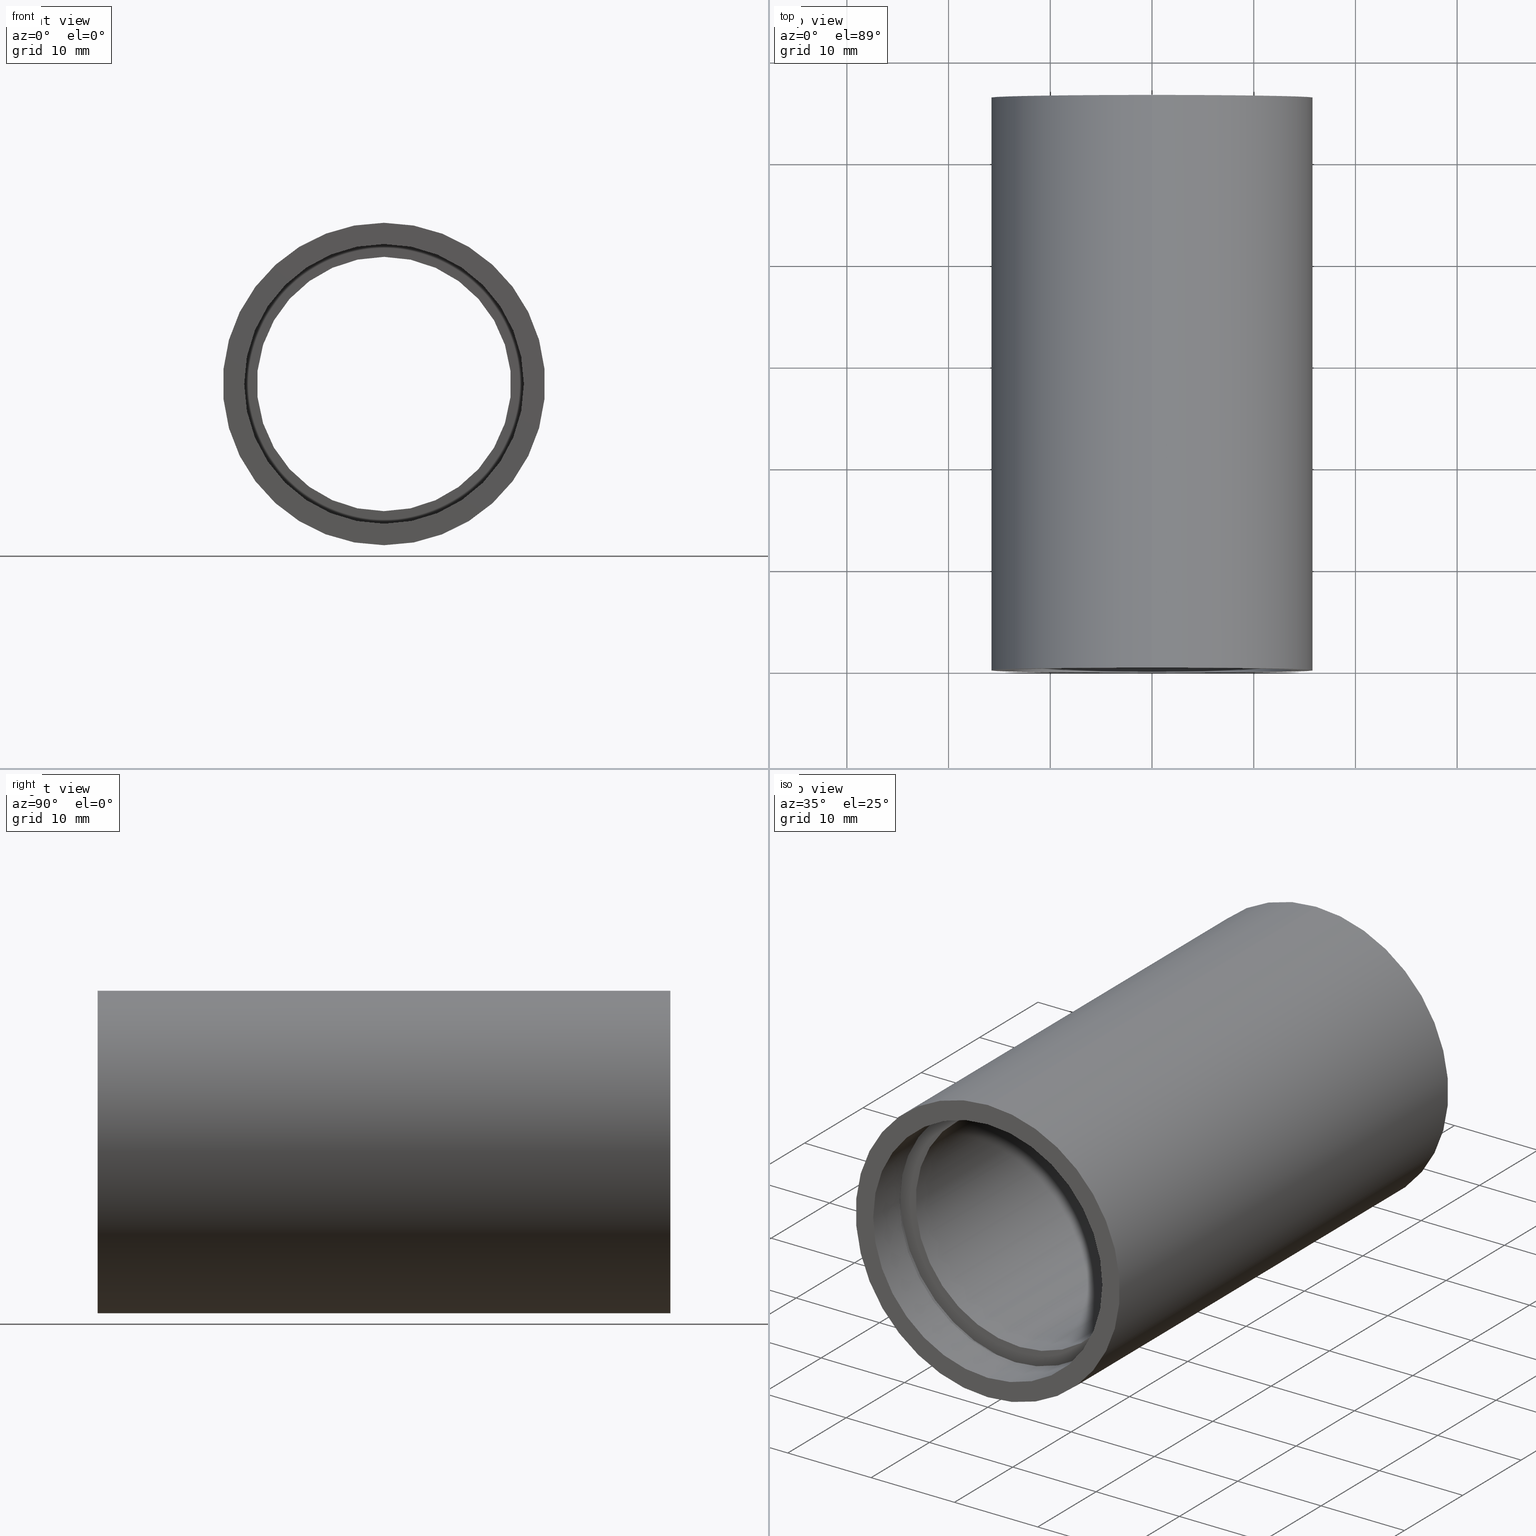
[diagram: canonical four-view strip — front | top / right | iso, engineering-drawing reading convention]
A machine part, canonical four-view strip (front | top / right | iso — engineering-drawing reading convention). The complete STEP part file that produces these views, byte-faithful:
ISO-10303-21;
HEADER;
FILE_DESCRIPTION (( 'STEP AP214' ),
    '1' );
FILE_NAME ('503051.STEP',
    '2019-09-06T07:25:42',
    ( '' ),
    ( '' ),
    'SwSTEP 2.0',
    'SolidWorks 2016',
    '' );
FILE_SCHEMA (( 'AUTOMOTIVE_DESIGN' ));
ENDSEC;

DATA;
#1 = AXIS2_PLACEMENT_3D ( 'NONE', #528, #328, #228 ) ;
#2 = ORIENTED_EDGE ( 'NONE', *, *, #159, .T. ) ;
#3 = CARTESIAN_POINT ( 'NONE',  ( 1.683889348827613200E-015, 161.3761669434274500, -13.75000000000002100 ) ) ;
#4 = ORIENTED_EDGE ( 'NONE', *, *, #222, .T. ) ;
#5 = DIRECTION ( 'NONE',  ( -0.0000000000000000000, 1.000000000000000000, -0.0000000000000000000 ) ) ;
#6 = PRESENTATION_STYLE_ASSIGNMENT (( #253 ) ) ;
#7 = LINE ( 'NONE', #386, #153 ) ;
#8 = DIRECTION ( 'NONE',  ( 0.0000000000000000000, 0.0000000000000000000, 1.000000000000000000 ) ) ;
#9 = COLOUR_RGB ( '',1.000000000000000000, 1.000000000000000000, 1.000000000000000000 ) ;
#10 = EDGE_LOOP ( 'NONE', ( #39, #550, #354, #324 ) ) ;
#11 = CARTESIAN_POINT ( 'NONE',  ( 1.941065176648557100E-015, 56.29999999999999000, -15.85000000000002100 ) ) ;
#12 = AXIS2_PLACEMENT_3D ( 'NONE', #34, #385, #185 ) ;
#13 = CARTESIAN_POINT ( 'NONE',  ( 0.0000000000000000000, 51.79999999999996900, 0.0000000000000000000 ) ) ;
#14 = LINE ( 'NONE', #229, #372 ) ;
#15 = CARTESIAN_POINT ( 'NONE',  ( 0.0000000000000000000, 161.3761669434274500, 0.0000000000000000000 ) ) ;
#16 = VERTEX_POINT ( 'NONE', #107 ) ;
#17 = ORIENTED_EDGE ( 'NONE', *, *, #572, .T. ) ;
#18 = CARTESIAN_POINT ( 'NONE',  ( 1.757368156776453600E-015, 51.79999999999996900, -14.35000000000001200 ) ) ;
#19 = DIRECTION ( 'NONE',  ( -0.0000000000000000000, 1.000000000000000000, -0.0000000000000000000 ) ) ;
#20 = VECTOR ( 'NONE', #22, 1000.000000000000000 ) ;
#21 = AXIS2_PLACEMENT_3D ( 'NONE', #15, #414, #105 ) ;
#22 = DIRECTION ( 'NONE',  ( -0.0000000000000000000, 1.000000000000000000, -0.0000000000000000000 ) ) ;
#23 = CARTESIAN_POINT ( 'NONE',  ( 0.0000000000000000000, 4.499999999999976000, 0.0000000000000000000 ) ) ;
#24 = LINE ( 'NONE', #140, #240 ) ;
#25 = AXIS2_PLACEMENT_3D ( 'NONE', #412, #256, #596 ) ;
#26 = CYLINDRICAL_SURFACE ( 'NONE', #429, 13.75000000000002100 ) ;
#27 = VERTEX_POINT ( 'NONE', #18 ) ;
#28 = FILL_AREA_STYLE ('',( #318 ) ) ;
#29 = FACE_OUTER_BOUND ( 'NONE', #569, .T. ) ;
#30 = EDGE_CURVE ( 'NONE', #266, #410, #416, .T. ) ;
#31 = DIRECTION ( 'NONE',  ( -0.0000000000000000000, 1.000000000000000000, -0.0000000000000000000 ) ) ;
#32 = AXIS2_PLACEMENT_3D ( 'NONE', #233, #290, #387 ) ;
#33 = ORIENTED_EDGE ( 'NONE', *, *, #345, .T. ) ;
#34 = CARTESIAN_POINT ( 'NONE',  ( 0.0000000000000000000, -2.775557561562891400E-014, 0.0000000000000000000 ) ) ;
#35 = FILL_AREA_STYLE_COLOUR ( '', #119 ) ;
#36 = CIRCLE ( 'NONE', #56, 14.35000000000001200 ) ;
#37 = DIRECTION ( 'NONE',  ( 0.0000000000000000000, 0.0000000000000000000, 1.000000000000000000 ) ) ;
#38 = DIRECTION ( 'NONE',  ( -0.0000000000000000000, 1.000000000000000000, -0.0000000000000000000 ) ) ;
#39 = ORIENTED_EDGE ( 'NONE', *, *, #512, .F. ) ;
#40 = UNCERTAINTY_MEASURE_WITH_UNIT (LENGTH_MEASURE( 1.000000000000000100E-005 ), #134, 'distance_accuracy_value', 'NONE');
#41 = DIRECTION ( 'NONE',  ( -0.0000000000000000000, 1.000000000000000000, -0.0000000000000000000 ) ) ;
#42 = SHAPE_DEFINITION_REPRESENTATION ( #363, #82 ) ;
#43 = CIRCLE ( 'NONE', #75, 15.85000000000002100 ) ;
#44 = AXIS2_PLACEMENT_3D ( 'NONE', #85, #41, #144 ) ;
#45 = PLANE ( 'NONE',  #398 ) ;
#46 = EDGE_LOOP ( 'NONE', ( #259, #425 ) ) ;
#47 = EDGE_LOOP ( 'NONE', ( #353, #607, #221, #186 ) ) ;
#48 = SURFACE_SIDE_STYLE ('',( #53 ) ) ;
#49 = ORIENTED_EDGE ( 'NONE', *, *, #106, .T. ) ;
#50 = VERTEX_POINT ( 'NONE', #514 ) ;
#51 =( GEOMETRIC_REPRESENTATION_CONTEXT ( 3 ) GLOBAL_UNCERTAINTY_ASSIGNED_CONTEXT ( ( #317 ) ) GLOBAL_UNIT_ASSIGNED_CONTEXT ( ( #560, #515, #517 ) ) REPRESENTATION_CONTEXT ( 'NONE', 'WORKASPACE' ) );
#52 = FILL_AREA_STYLE ('',( #587 ) ) ;
#53 = SURFACE_STYLE_FILL_AREA ( #52 ) ;
#54 = CARTESIAN_POINT ( 'NONE',  ( 0.0000000000000000000, 161.3761669434274500, 0.0000000000000000000 ) ) ;
#55 = AXIS2_PLACEMENT_3D ( 'NONE', #122, #118, #558 ) ;
#56 = AXIS2_PLACEMENT_3D ( 'NONE', #63, #408, #314 ) ;
#57 = LINE ( 'NONE', #3, #319 ) ;
#58 =( NAMED_UNIT ( * ) SI_UNIT ( $, .STERADIAN. ) SOLID_ANGLE_UNIT ( ) );
#59 = CIRCLE ( 'NONE', #389, 13.75000000000002100 ) ;
#60 = EDGE_LOOP ( 'NONE', ( #260, #436, #326, #68 ) ) ;
#61 = MECHANICAL_DESIGN_GEOMETRIC_PRESENTATION_REPRESENTATION (  '', ( #595 ), #83 ) ;
#62 = CYLINDRICAL_SURFACE ( 'NONE', #268, 14.35000000000001900 ) ;
#63 = CARTESIAN_POINT ( 'NONE',  ( 0.0000000000000000000, 50.79999999999996900, 0.0000000000000000000 ) ) ;
#64 = UNCERTAINTY_MEASURE_WITH_UNIT (LENGTH_MEASURE( 1.000000000000000100E-005 ), #503, 'distance_accuracy_value', 'NONE');
#65 = EDGE_CURVE ( 'NONE', #404, #476, #215, .T. ) ;
#66 = CARTESIAN_POINT ( 'NONE',  ( 0.0000000000000000000, -2.775557561562891400E-014, 0.0000000000000000000 ) ) ;
#67 = SURFACE_SIDE_STYLE ('',( #561 ) ) ;
#68 = ORIENTED_EDGE ( 'NONE', *, *, #405, .F. ) ;
#69 =( LENGTH_UNIT ( ) NAMED_UNIT ( * ) SI_UNIT ( .MILLI., .METRE. ) );
#70 = EDGE_CURVE ( 'NONE', #252, #397, #139, .T. ) ;
#71 = APPLICATION_CONTEXT ( 'automotive_design' ) ;
#72 = DIRECTION ( 'NONE',  ( 0.0000000000000000000, 0.0000000000000000000, 1.000000000000000000 ) ) ;
#73 = PRODUCT_CONTEXT ( 'NONE', #71, 'mechanical' ) ;
#74 = CYLINDRICAL_SURFACE ( 'NONE', #250, 14.25000000000001400 ) ;
#75 = AXIS2_PLACEMENT_3D ( 'NONE', #446, #244, #455 ) ;
#76 = ORIENTED_EDGE ( 'NONE', *, *, #137, .F. ) ;
#77 = VERTEX_POINT ( 'NONE', #110 ) ;
#78 = CARTESIAN_POINT ( 'NONE',  ( 0.0000000000000000000, 161.3761669434274500, 0.0000000000000000000 ) ) ;
#79 =( NAMED_UNIT ( * ) PLANE_ANGLE_UNIT ( ) SI_UNIT ( $, .RADIAN. ) );
#80 = AXIS2_PLACEMENT_3D ( 'NONE', #323, #320, #178 ) ;
#81 = ORIENTED_EDGE ( 'NONE', *, *, #325, .T. ) ;
#82 = ADVANCED_BREP_SHAPE_REPRESENTATION ( '503051', ( #500, #191 ), #254 ) ;
#83 =( GEOMETRIC_REPRESENTATION_CONTEXT ( 3 ) GLOBAL_UNCERTAINTY_ASSIGNED_CONTEXT ( ( #40 ) ) GLOBAL_UNIT_ASSIGNED_CONTEXT ( ( #134, #79, #427 ) ) REPRESENTATION_CONTEXT ( 'NONE', 'WORKASPACE' ) );
#84 = ADVANCED_FACE ( 'NONE', ( #309 ), #26, .F. ) ;
#85 = CARTESIAN_POINT ( 'NONE',  ( 0.0000000000000000000, 50.79999999999996900, 0.0000000000000000000 ) ) ;
#86 = DIRECTION ( 'NONE',  ( 0.0000000000000000000, 0.0000000000000000000, 1.000000000000000000 ) ) ;
#87 = LINE ( 'NONE', #623, #592 ) ;
#88 = EDGE_CURVE ( 'NONE', #120, #388, #59, .T. ) ;
#89 = EDGE_LOOP ( 'NONE', ( #434, #538 ) ) ;
#90 = ORIENTED_EDGE ( 'NONE', *, *, #381, .T. ) ;
#91 = CARTESIAN_POINT ( 'NONE',  ( 1.530808498934193900E-015, 50.79999999999996900, -12.50000000000002000 ) ) ;
#92 =( GEOMETRIC_REPRESENTATION_CONTEXT ( 3 ) GLOBAL_UNCERTAINTY_ASSIGNED_CONTEXT ( ( #364 ) ) GLOBAL_UNIT_ASSIGNED_CONTEXT ( ( #114, #369, #463 ) ) REPRESENTATION_CONTEXT ( 'NONE', 'WORKASPACE' ) );
#93 = DIRECTION ( 'NONE',  ( 0.0000000000000000000, 0.0000000000000000000, 1.000000000000000000 ) ) ;
#94 = CIRCLE ( 'NONE', #499, 12.50000000000002000 ) ;
#95 = EDGE_LOOP ( 'NONE', ( #390, #149, #112, #227 ) ) ;
#96 = EDGE_CURVE ( 'NONE', #375, #77, #620, .T. ) ;
#97 = ADVANCED_FACE ( 'NONE', ( #566 ), #403, .F. ) ;
#98 = DIRECTION ( 'NONE',  ( 0.0000000000000000000, 0.0000000000000000000, 1.000000000000000000 ) ) ;
#99 = FACE_BOUND ( 'NONE', #483, .T. ) ;
#100 = SURFACE_STYLE_FILL_AREA ( #378 ) ;
#101 = FACE_OUTER_BOUND ( 'NONE', #47, .T. ) ;
#102 = CARTESIAN_POINT ( 'NONE',  ( 0.0000000000000000000, 4.499999999999976000, 14.35000000000001900 ) ) ;
#103 = ORIENTED_EDGE ( 'NONE', *, *, #622, .T. ) ;
#104 = DIRECTION ( 'NONE',  ( -0.0000000000000000000, 1.000000000000000000, -0.0000000000000000000 ) ) ;
#105 = DIRECTION ( 'NONE',  ( 0.0000000000000000000, 0.0000000000000000000, 1.000000000000000000 ) ) ;
#106 = EDGE_CURVE ( 'NONE', #529, #16, #474, .T. ) ;
#107 = CARTESIAN_POINT ( 'NONE',  ( 1.757368156776453600E-015, 50.79999999999996900, -14.35000000000001200 ) ) ;
#108 = PLANE ( 'NONE',  #349 ) ;
#109 = LINE ( 'NONE', #574, #473 ) ;
#110 = CARTESIAN_POINT ( 'NONE',  ( 0.0000000000000000000, 56.29999999999999000, 15.85000000000002100 ) ) ;
#111 = VERTEX_POINT ( 'NONE', #413 ) ;
#112 = ORIENTED_EDGE ( 'NONE', *, *, #472, .T. ) ;
#113 = DIRECTION ( 'NONE',  ( -0.0000000000000000000, 1.000000000000000000, -0.0000000000000000000 ) ) ;
#114 =( LENGTH_UNIT ( ) NAMED_UNIT ( * ) SI_UNIT ( .MILLI., .METRE. ) );
#115 = CARTESIAN_POINT ( 'NONE',  ( 1.745121688784980200E-015, 56.29999999999997600, -14.25000000000001400 ) ) ;
#116 = FILL_AREA_STYLE_COLOUR ( '', #9 ) ;
#117 = PRESENTATION_LAYER_ASSIGNMENT (  '', '', ( #400 ) ) ;
#118 = DIRECTION ( 'NONE',  ( -0.0000000000000000000, 1.000000000000000000, -0.0000000000000000000 ) ) ;
#119 = COLOUR_RGB ( '',1.000000000000000000, 1.000000000000000000, 1.000000000000000000 ) ;
#120 = VERTEX_POINT ( 'NONE', #421 ) ;
#121 = DIRECTION ( 'NONE',  ( 1.000000000000000000, 0.0000000000000000000, 0.0000000000000000000 ) ) ;
#122 = CARTESIAN_POINT ( 'NONE',  ( 0.0000000000000000000, 56.29999999999997600, 0.0000000000000000000 ) ) ;
#123 = AXIS2_PLACEMENT_3D ( 'NONE', #376, #127, #477 ) ;
#124 = PRODUCT ( '503051', '503051', '', ( #73 ) ) ;
#125 = APPLICATION_PROTOCOL_DEFINITION ( 'draft international standard', 'automotive_design', 1998, #71 ) ;
#126 = DIRECTION ( 'NONE',  ( -0.0000000000000000000, 1.000000000000000000, -0.0000000000000000000 ) ) ;
#127 = DIRECTION ( 'NONE',  ( -0.0000000000000000000, 1.000000000000000000, -0.0000000000000000000 ) ) ;
#128 = PRESENTATION_LAYER_ASSIGNMENT (  '', '', ( #155 ) ) ;
#129 =( NAMED_UNIT ( * ) SI_UNIT ( $, .STERADIAN. ) SOLID_ANGLE_UNIT ( ) );
#130 = SURFACE_STYLE_FILL_AREA ( #617 ) ;
#131 = VERTEX_POINT ( 'NONE', #523 ) ;
#132 = EDGE_LOOP ( 'NONE', ( #568, #76 ) ) ;
#133 = LINE ( 'NONE', #208, #577 ) ;
#134 =( LENGTH_UNIT ( ) NAMED_UNIT ( * ) SI_UNIT ( .MILLI., .METRE. ) );
#135 = SURFACE_STYLE_USAGE ( .BOTH. , #383 ) ;
#136 = ADVANCED_FACE ( 'NONE', ( #101 ), #138, .F. ) ;
#137 = EDGE_CURVE ( 'NONE', #210, #111, #464, .T. ) ;
#138 = CYLINDRICAL_SURFACE ( 'NONE', #570, 12.50000000000002000 ) ;
#139 = CIRCLE ( 'NONE', #423, 14.35000000000001900 ) ;
#140 = CARTESIAN_POINT ( 'NONE',  ( 0.0000000000000000000, 161.3761669434274500, 14.25000000000001400 ) ) ;
#141 = ORIENTED_EDGE ( 'NONE', *, *, #205, .T. ) ;
#142 = PLANE ( 'NONE',  #176 ) ;
#143 = CYLINDRICAL_SURFACE ( 'NONE', #21, 14.35000000000001200 ) ;
#144 = DIRECTION ( 'NONE',  ( 0.0000000000000000000, 0.0000000000000000000, 1.000000000000000000 ) ) ;
#145 = FACE_OUTER_BOUND ( 'NONE', #60, .T. ) ;
#146 = EDGE_CURVE ( 'NONE', #397, #252, #316, .T. ) ;
#147 = ORIENTED_EDGE ( 'NONE', *, *, #168, .T. ) ;
#148 = ADVANCED_FACE ( 'NONE', ( #488 ), #495, .F. ) ;
#149 = ORIENTED_EDGE ( 'NONE', *, *, #512, .T. ) ;
#150 = COLOUR_RGB ( '',1.000000000000000000, 1.000000000000000000, 1.000000000000000000 ) ;
#151 = DIRECTION ( 'NONE',  ( -0.0000000000000000000, 1.000000000000000000, -0.0000000000000000000 ) ) ;
#152 = CIRCLE ( 'NONE', #209, 14.35000000000001200 ) ;
#153 = VECTOR ( 'NONE', #435, 1000.000000000000000 ) ;
#154 = DIRECTION ( 'NONE',  ( -0.0000000000000000000, 1.000000000000000000, -0.0000000000000000000 ) ) ;
#155 = STYLED_ITEM ( 'NONE', ( #504 ), #97 ) ;
#156 = EDGE_LOOP ( 'NONE', ( #417, #90, #341, #489 ) ) ;
#157 = SURFACE_SIDE_STYLE ('',( #130 ) ) ;
#158 = DIRECTION ( 'NONE',  ( -0.0000000000000000000, 1.000000000000000000, 0.0000000000000000000 ) ) ;
#159 = EDGE_CURVE ( 'NONE', #361, #340, #518, .T. ) ;
#160 = MECHANICAL_DESIGN_GEOMETRIC_PRESENTATION_REPRESENTATION (  '', ( #496 ), #216 ) ;
#161 = DIRECTION ( 'NONE',  ( 0.0000000000000000000, 0.0000000000000000000, 1.000000000000000000 ) ) ;
#162 = ORIENTED_EDGE ( 'NONE', *, *, #381, .F. ) ;
#163 = ORIENTED_EDGE ( 'NONE', *, *, #303, .F. ) ;
#164 = AXIS2_PLACEMENT_3D ( 'NONE', #602, #322, #72 ) ;
#165 = CARTESIAN_POINT ( 'NONE',  ( 13.75000000000002100, 4.499999999999984000, 0.0000000000000000000 ) ) ;
#166 = CIRCLE ( 'NONE', #237, 14.35000000000001200 ) ;
#167 = DIRECTION ( 'NONE',  ( 0.0000000000000000000, -1.000000000000000000, 0.0000000000000000000 ) ) ;
#168 = EDGE_CURVE ( 'NONE', #410, #397, #14, .T. ) ;
#169 = FILL_AREA_STYLE ('',( #269 ) ) ;
#170 = DIRECTION ( 'NONE',  ( 0.0000000000000000000, -0.0000000000000000000, -1.000000000000000000 ) ) ;
#171 = DIRECTION ( 'NONE',  ( -0.0000000000000000000, 1.000000000000000000, -0.0000000000000000000 ) ) ;
#172 = ORIENTED_EDGE ( 'NONE', *, *, #222, .F. ) ;
#173 = EDGE_CURVE ( 'NONE', #50, #181, #109, .T. ) ;
#174 = DIRECTION ( 'NONE',  ( 0.0000000000000000000, 0.0000000000000000000, 1.000000000000000000 ) ) ;
#175 = PRODUCT_RELATED_PRODUCT_CATEGORY ( 'part', '', ( #124 ) ) ;
#176 = AXIS2_PLACEMENT_3D ( 'NONE', #192, #395, #93 ) ;
#177 = DIRECTION ( 'NONE',  ( 0.0000000000000000000, 0.0000000000000000000, 1.000000000000000000 ) ) ;
#178 = DIRECTION ( 'NONE',  ( 0.0000000000000000000, 0.0000000000000000000, 1.000000000000000000 ) ) ;
#179 = ORIENTED_EDGE ( 'NONE', *, *, #168, .F. ) ;
#180 = DIRECTION ( 'NONE',  ( 0.0000000000000000000, 0.0000000000000000000, 1.000000000000000000 ) ) ;
#181 = VERTEX_POINT ( 'NONE', #424 ) ;
#182 = EDGE_CURVE ( 'NONE', #361, #77, #7, .T. ) ;
#183 = DIRECTION ( 'NONE',  ( -0.0000000000000000000, 1.000000000000000000, -0.0000000000000000000 ) ) ;
#184 = CARTESIAN_POINT ( 'NONE',  ( 0.0000000000000000000, 5.499999999999976900, 0.0000000000000000000 ) ) ;
#185 = DIRECTION ( 'NONE',  ( 0.0000000000000000000, 0.0000000000000000000, 1.000000000000000000 ) ) ;
#186 = ORIENTED_EDGE ( 'NONE', *, *, #173, .F. ) ;
#187 = FILL_AREA_STYLE_COLOUR ( '', #547 ) ;
#188 = CYLINDRICAL_SURFACE ( 'NONE', #492, 15.85000000000002100 ) ;
#189 = DIRECTION ( 'NONE',  ( -0.0000000000000000000, 1.000000000000000000, -0.0000000000000000000 ) ) ;
#190 = DIRECTION ( 'NONE',  ( 0.0000000000000000000, -1.000000000000000000, 0.0000000000000000000 ) ) ;
#191 = AXIS2_PLACEMENT_3D ( 'NONE', #471, #370, #121 ) ;
#192 = CARTESIAN_POINT ( 'NONE',  ( 14.25000000000001400, 51.79999999999996900, 0.0000000000000000000 ) ) ;
#193 = EDGE_LOOP ( 'NONE', ( #172, #163 ) ) ;
#194 = CARTESIAN_POINT ( 'NONE',  ( 0.0000000000000000000, 51.79999999999996900, 0.0000000000000000000 ) ) ;
#195 = ADVANCED_FACE ( 'NONE', ( #145 ), #358, .F. ) ;
#196 = FACE_OUTER_BOUND ( 'NONE', #327, .T. ) ;
#197 = AXIS2_PLACEMENT_3D ( 'NONE', #78, #281, #611 ) ;
#198 = ADVANCED_FACE ( 'NONE', ( #618 ), #510, .F. ) ;
#199 = CARTESIAN_POINT ( 'NONE',  ( 15.85000000000002100, 56.29999999999997600, 0.0000000000000000000 ) ) ;
#200 = EDGE_CURVE ( 'NONE', #542, #50, #274, .T. ) ;
#201 = DIRECTION ( 'NONE',  ( -0.0000000000000000000, 1.000000000000000000, -0.0000000000000000000 ) ) ;
#202 = EDGE_LOOP ( 'NONE', ( #49, #549 ) ) ;
#203 = UNCERTAINTY_MEASURE_WITH_UNIT (LENGTH_MEASURE( 1.000000000000000100E-005 ), #604, 'distance_accuracy_value', 'NONE');
#204 = CARTESIAN_POINT ( 'NONE',  ( 0.0000000000000000000, 5.499999999999976900, 14.35000000000001900 ) ) ;
#205 = EDGE_CURVE ( 'NONE', #131, #291, #447, .T. ) ;
#206 =( NAMED_UNIT ( * ) PLANE_ANGLE_UNIT ( ) SI_UNIT ( $, .RADIAN. ) );
#207 = LINE ( 'NONE', #351, #456 ) ;
#208 = CARTESIAN_POINT ( 'NONE',  ( 0.0000000000000000000, 161.3761669434274500, 13.75000000000002100 ) ) ;
#209 = AXIS2_PLACEMENT_3D ( 'NONE', #600, #597, #161 ) ;
#210 = VERTEX_POINT ( 'NONE', #578 ) ;
#211 = ORIENTED_EDGE ( 'NONE', *, *, #289, .T. ) ;
#212 =( LENGTH_UNIT ( ) NAMED_UNIT ( * ) SI_UNIT ( .MILLI., .METRE. ) );
#213 = DIRECTION ( 'NONE',  ( -0.0000000000000000000, 1.000000000000000000, -0.0000000000000000000 ) ) ;
#214 = DIRECTION ( 'NONE',  ( 0.0000000000000000000, -1.000000000000000000, 0.0000000000000000000 ) ) ;
#215 = CIRCLE ( 'NONE', #55, 14.25000000000001400 ) ;
#216 =( GEOMETRIC_REPRESENTATION_CONTEXT ( 3 ) GLOBAL_UNCERTAINTY_ASSIGNED_CONTEXT ( ( #203 ) ) GLOBAL_UNIT_ASSIGNED_CONTEXT ( ( #604, #564, #469 ) ) REPRESENTATION_CONTEXT ( 'NONE', 'WORKASPACE' ) );
#217 = COLOUR_RGB ( '',1.000000000000000000, 1.000000000000000000, 1.000000000000000000 ) ;
#218 = SURFACE_SIDE_STYLE ('',( #531 ) ) ;
#219 = PRESENTATION_LAYER_ASSIGNMENT (  '', '', ( #225 ) ) ;
#220 = CARTESIAN_POINT ( 'NONE',  ( 0.0000000000000000000, 161.3761669434274500, 0.0000000000000000000 ) ) ;
#221 = ORIENTED_EDGE ( 'NONE', *, *, #303, .T. ) ;
#222 = EDGE_CURVE ( 'NONE', #181, #333, #249, .T. ) ;
#223 = ORIENTED_EDGE ( 'NONE', *, *, #159, .F. ) ;
#224 = APPLICATION_PROTOCOL_DEFINITION ( 'draft international standard', 'automotive_design', 1998, #524 ) ;
#225 = STYLED_ITEM ( 'NONE', ( #226 ), #335 ) ;
#226 = PRESENTATION_STYLE_ASSIGNMENT (( #297 ) ) ;
#227 = ORIENTED_EDGE ( 'NONE', *, *, #562, .F. ) ;
#228 = DIRECTION ( 'NONE',  ( 0.0000000000000000000, 0.0000000000000000000, 1.000000000000000000 ) ) ;
#229 = CARTESIAN_POINT ( 'NONE',  ( 0.0000000000000000000, 161.3761669434274500, 14.35000000000001900 ) ) ;
#230 = VECTOR ( 'NONE', #104, 1000.000000000000000 ) ;
#231 = EDGE_CURVE ( 'NONE', #77, #375, #612, .T. ) ;
#232 = ADVANCED_FACE ( 'NONE', ( #352, #502 ), #45, .F. ) ;
#233 = CARTESIAN_POINT ( 'NONE',  ( 0.0000000000000000000, 5.499999999999976900, 0.0000000000000000000 ) ) ;
#234 = FACE_OUTER_BOUND ( 'NONE', #277, .T. ) ;
#235 = EDGE_LOOP ( 'NONE', ( #223, #162 ) ) ;
#236 = CARTESIAN_POINT ( 'NONE',  ( 0.0000000000000000000, 4.499999999999976000, 0.0000000000000000000 ) ) ;
#237 = AXIS2_PLACEMENT_3D ( 'NONE', #13, #113, #465 ) ;
#238 = ADVANCED_FACE ( 'NONE', ( #486, #402 ), #624, .F. ) ;
#239 = DIRECTION ( 'NONE',  ( -0.0000000000000000000, 1.000000000000000000, -0.0000000000000000000 ) ) ;
#240 = VECTOR ( 'NONE', #494, 1000.000000000000000 ) ;
#241 = CARTESIAN_POINT ( 'NONE',  ( 0.0000000000000000000, 56.29999999999997600, 14.25000000000001400 ) ) ;
#242 = EDGE_LOOP ( 'NONE', ( #33, #557 ) ) ;
#243 = ORIENTED_EDGE ( 'NONE', *, *, #472, .F. ) ;
#244 = DIRECTION ( 'NONE',  ( -0.0000000000000000000, 1.000000000000000000, -0.0000000000000000000 ) ) ;
#245 = UNCERTAINTY_MEASURE_WITH_UNIT (LENGTH_MEASURE( 1.000000000000000100E-005 ), #485, 'distance_accuracy_value', 'NONE');
#246 = MECHANICAL_DESIGN_GEOMETRIC_PRESENTATION_REPRESENTATION (  '', ( #441 ), #315 ) ;
#247 =( NAMED_UNIT ( * ) PLANE_ANGLE_UNIT ( ) SI_UNIT ( $, .RADIAN. ) );
#248 = DIRECTION ( 'NONE',  ( -0.0000000000000000000, 1.000000000000000000, -0.0000000000000000000 ) ) ;
#249 = CIRCLE ( 'NONE', #44, 12.50000000000002000 ) ;
#250 = AXIS2_PLACEMENT_3D ( 'NONE', #591, #201, #541 ) ;
#251 = COLOUR_RGB ( '',1.000000000000000000, 1.000000000000000000, 1.000000000000000000 ) ;
#252 = VERTEX_POINT ( 'NONE', #540 ) ;
#253 = SURFACE_STYLE_USAGE ( .BOTH. , #67 ) ;
#254 =( GEOMETRIC_REPRESENTATION_CONTEXT ( 3 ) GLOBAL_UNCERTAINTY_ASSIGNED_CONTEXT ( ( #431 ) ) GLOBAL_UNIT_ASSIGNED_CONTEXT ( ( #69, #273, #422 ) ) REPRESENTATION_CONTEXT ( 'NONE', 'WORKASPACE' ) );
#255 =( NAMED_UNIT ( * ) PLANE_ANGLE_UNIT ( ) SI_UNIT ( $, .RADIAN. ) );
#256 = DIRECTION ( 'NONE',  ( -0.0000000000000000000, 1.000000000000000000, -0.0000000000000000000 ) ) ;
#257 = FACE_OUTER_BOUND ( 'NONE', #614, .T. ) ;
#258 = PRESENTATION_LAYER_ASSIGNMENT (  '', '', ( #454 ) ) ;
#259 = ORIENTED_EDGE ( 'NONE', *, *, #458, .T. ) ;
#260 = ORIENTED_EDGE ( 'NONE', *, *, #88, .F. ) ;
#261 = CYLINDRICAL_SURFACE ( 'NONE', #80, 15.85000000000002100 ) ;
#262 = CARTESIAN_POINT ( 'NONE',  ( 0.0000000000000000000, 161.3761669434274500, 0.0000000000000000000 ) ) ;
#263 = VECTOR ( 'NONE', #189, 1000.000000000000000 ) ;
#264 = SURFACE_STYLE_USAGE ( .BOTH. , #218 ) ;
#265 = EDGE_CURVE ( 'NONE', #131, #476, #603, .T. ) ;
#266 = VERTEX_POINT ( 'NONE', #343 ) ;
#267 = CARTESIAN_POINT ( 'NONE',  ( 0.0000000000000000000, 56.29999999999999000, 0.0000000000000000000 ) ) ;
#268 = AXIS2_PLACEMENT_3D ( 'NONE', #459, #213, #365 ) ;
#269 = FILL_AREA_STYLE_COLOUR ( '', #251 ) ;
#270 = FACE_OUTER_BOUND ( 'NONE', #10, .T. ) ;
#271 = MECHANICAL_DESIGN_GEOMETRIC_PRESENTATION_REPRESENTATION (  '', ( #400 ), #466 ) ;
#272 = DIRECTION ( 'NONE',  ( -0.0000000000000000000, 1.000000000000000000, -0.0000000000000000000 ) ) ;
#273 =( NAMED_UNIT ( * ) PLANE_ANGLE_UNIT ( ) SI_UNIT ( $, .RADIAN. ) );
#274 = CIRCLE ( 'NONE', #32, 12.50000000000002000 ) ;
#275 = ORIENTED_EDGE ( 'NONE', *, *, #30, .T. ) ;
#276 = EDGE_CURVE ( 'NONE', #340, #375, #87, .T. ) ;
#277 = EDGE_LOOP ( 'NONE', ( #582, #243 ) ) ;
#278 = DIRECTION ( 'NONE',  ( 0.0000000000000000000, 0.0000000000000000000, 1.000000000000000000 ) ) ;
#279 = PRODUCT_DEFINITION_CONTEXT ( 'detailed design', #524, 'design' ) ;
#280 = FACE_BOUND ( 'NONE', #132, .T. ) ;
#281 = DIRECTION ( 'NONE',  ( -0.0000000000000000000, 1.000000000000000000, -0.0000000000000000000 ) ) ;
#282 = PRESENTATION_LAYER_ASSIGNMENT (  '', '', ( #496 ) ) ;
#283 = DIRECTION ( 'NONE',  ( -0.0000000000000000000, 1.000000000000000000, -0.0000000000000000000 ) ) ;
#284 = CIRCLE ( 'NONE', #342, 12.50000000000002000 ) ;
#285 = SURFACE_STYLE_FILL_AREA ( #169 ) ;
#286 = FILL_AREA_STYLE_COLOUR ( '', #554 ) ;
#287 = EDGE_LOOP ( 'NONE', ( #2, #594, #409, #293 ) ) ;
#288 = PRESENTATION_STYLE_ASSIGNMENT (( #501 ) ) ;
#289 = EDGE_CURVE ( 'NONE', #410, #266, #380, .T. ) ;
#290 = DIRECTION ( 'NONE',  ( -0.0000000000000000000, 1.000000000000000000, -0.0000000000000000000 ) ) ;
#291 = VERTEX_POINT ( 'NONE', #344 ) ;
#292 = DIRECTION ( 'NONE',  ( -0.0000000000000000000, 1.000000000000000000, 0.0000000000000000000 ) ) ;
#293 = ORIENTED_EDGE ( 'NONE', *, *, #182, .F. ) ;
#294 = MECHANICAL_DESIGN_GEOMETRIC_PRESENTATION_REPRESENTATION (  '', ( #454 ), #329 ) ;
#295 = ADVANCED_FACE ( 'NONE', ( #234, #526 ), #142, .F. ) ;
#296 = CARTESIAN_POINT ( 'NONE',  ( 0.0000000000000000000, -2.775557561562891400E-014, 13.75000000000002100 ) ) ;
#297 = SURFACE_STYLE_USAGE ( .BOTH. , #157 ) ;
#298 = AXIS2_PLACEMENT_3D ( 'NONE', #236, #580, #339 ) ;
#299 = CARTESIAN_POINT ( 'NONE',  ( 1.941065176648557100E-015, -2.775557561562891400E-014, -15.85000000000002100 ) ) ;
#300 = PRESENTATION_STYLE_ASSIGNMENT (( #367 ) ) ;
#301 = ORIENTED_EDGE ( 'NONE', *, *, #96, .T. ) ;
#302 = DIRECTION ( 'NONE',  ( 0.0000000000000000000, 0.0000000000000000000, 1.000000000000000000 ) ) ;
#303 = EDGE_CURVE ( 'NONE', #333, #181, #284, .T. ) ;
#304 = PRESENTATION_STYLE_ASSIGNMENT (( #264 ) ) ;
#305 = FACE_OUTER_BOUND ( 'NONE', #287, .T. ) ;
#306 = CARTESIAN_POINT ( 'NONE',  ( 0.0000000000000000000, -2.775557561562891400E-014, 15.85000000000002100 ) ) ;
#307 = CARTESIAN_POINT ( 'NONE',  ( 0.0000000000000000000, 50.79999999999996900, 14.35000000000001200 ) ) ;
#308 = AXIS2_PLACEMENT_3D ( 'NONE', #194, #239, #391 ) ;
#309 = FACE_OUTER_BOUND ( 'NONE', #482, .T. ) ;
#310 = ORIENTED_EDGE ( 'NONE', *, *, #30, .F. ) ;
#311 = ORIENTED_EDGE ( 'NONE', *, *, #205, .F. ) ;
#312 = FILL_AREA_STYLE_COLOUR ( '', #217 ) ;
#313 = DIRECTION ( 'NONE',  ( -0.0000000000000000000, 1.000000000000000000, -0.0000000000000000000 ) ) ;
#314 = DIRECTION ( 'NONE',  ( 0.0000000000000000000, 0.0000000000000000000, 1.000000000000000000 ) ) ;
#315 =( GEOMETRIC_REPRESENTATION_CONTEXT ( 3 ) GLOBAL_UNCERTAINTY_ASSIGNED_CONTEXT ( ( #559 ) ) GLOBAL_UNIT_ASSIGNED_CONTEXT ( ( #212, #255, #58 ) ) REPRESENTATION_CONTEXT ( 'NONE', 'WORKASPACE' ) );
#316 = CIRCLE ( 'NONE', #579, 14.35000000000001900 ) ;
#317 = UNCERTAINTY_MEASURE_WITH_UNIT (LENGTH_MEASURE( 1.000000000000000100E-005 ), #560, 'distance_accuracy_value', 'NONE');
#318 = FILL_AREA_STYLE_COLOUR ( '', #150 ) ;
#319 = VECTOR ( 'NONE', #151, 1000.000000000000000 ) ;
#320 = DIRECTION ( 'NONE',  ( -0.0000000000000000000, 1.000000000000000000, -0.0000000000000000000 ) ) ;
#321 = AXIS2_PLACEMENT_3D ( 'NONE', #338, #535, #86 ) ;
#322 = DIRECTION ( 'NONE',  ( -0.0000000000000000000, 1.000000000000000000, -0.0000000000000000000 ) ) ;
#323 = CARTESIAN_POINT ( 'NONE',  ( 0.0000000000000000000, 161.3761669434274500, 0.0000000000000000000 ) ) ;
#324 = ORIENTED_EDGE ( 'NONE', *, *, #480, .T. ) ;
#325 = EDGE_CURVE ( 'NONE', #291, #404, #24, .T. ) ;
#326 = ORIENTED_EDGE ( 'NONE', *, *, #137, .T. ) ;
#327 = EDGE_LOOP ( 'NONE', ( #310, #17, #511, #179 ) ) ;
#328 = DIRECTION ( 'NONE',  ( -0.0000000000000000000, 1.000000000000000000, -0.0000000000000000000 ) ) ;
#329 =( GEOMETRIC_REPRESENTATION_CONTEXT ( 3 ) GLOBAL_UNCERTAINTY_ASSIGNED_CONTEXT ( ( #452 ) ) GLOBAL_UNIT_ASSIGNED_CONTEXT ( ( #346, #247, #347 ) ) REPRESENTATION_CONTEXT ( 'NONE', 'WORKASPACE' ) );
#330 = CARTESIAN_POINT ( 'NONE',  ( 0.0000000000000000000, 161.3761669434274500, 0.0000000000000000000 ) ) ;
#331 =( NAMED_UNIT ( * ) PLANE_ANGLE_UNIT ( ) SI_UNIT ( $, .RADIAN. ) );
#332 = PRESENTATION_STYLE_ASSIGNMENT (( #615 ) ) ;
#333 = VERTEX_POINT ( 'NONE', #91 ) ;
#334 = CYLINDRICAL_SURFACE ( 'NONE', #606, 12.50000000000002000 ) ;
#335 = ADVANCED_FACE ( 'NONE', ( #257 ), #74, .F. ) ;
#336 = CARTESIAN_POINT ( 'NONE',  ( 1.745121688784980200E-015, 161.3761669434274500, -14.25000000000001400 ) ) ;
#337 = EDGE_CURVE ( 'NONE', #111, #210, #432, .T. ) ;
#338 = CARTESIAN_POINT ( 'NONE',  ( 0.0000000000000000000, 56.29999999999999000, 0.0000000000000000000 ) ) ;
#339 = DIRECTION ( 'NONE',  ( 0.0000000000000000000, 0.0000000000000000000, 1.000000000000000000 ) ) ;
#340 = VERTEX_POINT ( 'NONE', #299 ) ;
#341 = ORIENTED_EDGE ( 'NONE', *, *, #182, .T. ) ;
#342 = AXIS2_PLACEMENT_3D ( 'NONE', #576, #583, #394 ) ;
#343 = CARTESIAN_POINT ( 'NONE',  ( 1.757368156776454300E-015, 4.499999999999976000, -14.35000000000001900 ) ) ;
#344 = CARTESIAN_POINT ( 'NONE',  ( 0.0000000000000000000, 51.79999999999996900, 14.25000000000001400 ) ) ;
#345 = EDGE_CURVE ( 'NONE', #50, #542, #94, .T. ) ;
#346 =( LENGTH_UNIT ( ) NAMED_UNIT ( * ) SI_UNIT ( .MILLI., .METRE. ) );
#347 =( NAMED_UNIT ( * ) SI_UNIT ( $, .STERADIAN. ) SOLID_ANGLE_UNIT ( ) );
#348 = ORIENTED_EDGE ( 'NONE', *, *, #65, .F. ) ;
#349 = AXIS2_PLACEMENT_3D ( 'NONE', #165, #214, #555 ) ;
#350 = FACE_OUTER_BOUND ( 'NONE', #89, .T. ) ;
#351 = CARTESIAN_POINT ( 'NONE',  ( 1.530808498934193900E-015, 161.3761669434274500, -12.50000000000002000 ) ) ;
#352 = FACE_BOUND ( 'NONE', #193, .T. ) ;
#353 = ORIENTED_EDGE ( 'NONE', *, *, #200, .F. ) ;
#354 = ORIENTED_EDGE ( 'NONE', *, *, #562, .T. ) ;
#355 = EDGE_CURVE ( 'NONE', #542, #333, #207, .T. ) ;
#356 = DIRECTION ( 'NONE',  ( -0.0000000000000000000, 1.000000000000000000, -0.0000000000000000000 ) ) ;
#357 = MECHANICAL_DESIGN_GEOMETRIC_PRESENTATION_REPRESENTATION (  '', ( #155 ), #51 ) ;
#358 = CYLINDRICAL_SURFACE ( 'NONE', #509, 13.75000000000002100 ) ;
#359 = CARTESIAN_POINT ( 'NONE',  ( 0.0000000000000000000, 161.3761669434274500, 14.35000000000001200 ) ) ;
#360 = ORIENTED_EDGE ( 'NONE', *, *, #444, .F. ) ;
#361 = VERTEX_POINT ( 'NONE', #306 ) ;
#362 = DIRECTION ( 'NONE',  ( -0.0000000000000000000, 1.000000000000000000, -0.0000000000000000000 ) ) ;
#363 = PRODUCT_DEFINITION_SHAPE ( 'NONE', 'NONE',  #585 ) ;
#364 = UNCERTAINTY_MEASURE_WITH_UNIT (LENGTH_MEASURE( 1.000000000000000100E-005 ), #114, 'distance_accuracy_value', 'NONE');
#365 = DIRECTION ( 'NONE',  ( 0.0000000000000000000, 0.0000000000000000000, 1.000000000000000000 ) ) ;
#366 = AXIS2_PLACEMENT_3D ( 'NONE', #553, #481, #479 ) ;
#367 = SURFACE_STYLE_USAGE ( .BOTH. , #521 ) ;
#368 = LINE ( 'NONE', #359, #20 ) ;
#369 =( NAMED_UNIT ( * ) PLANE_ANGLE_UNIT ( ) SI_UNIT ( $, .RADIAN. ) );
#370 = DIRECTION ( 'NONE',  ( 0.0000000000000000000, 0.0000000000000000000, 1.000000000000000000 ) ) ;
#371 = EDGE_CURVE ( 'NONE', #120, #210, #57, .T. ) ;
#372 = VECTOR ( 'NONE', #31, 1000.000000000000000 ) ;
#373 = FILL_AREA_STYLE ('',( #116 ) ) ;
#374 = PRESENTATION_LAYER_ASSIGNMENT (  '', '', ( #441 ) ) ;
#375 = VERTEX_POINT ( 'NONE', #11 ) ;
#376 = CARTESIAN_POINT ( 'NONE',  ( 0.0000000000000000000, 51.79999999999996900, 0.0000000000000000000 ) ) ;
#377 =( GEOMETRIC_REPRESENTATION_CONTEXT ( 3 ) GLOBAL_UNCERTAINTY_ASSIGNED_CONTEXT ( ( #64 ) ) GLOBAL_UNIT_ASSIGNED_CONTEXT ( ( #503, #206, #590 ) ) REPRESENTATION_CONTEXT ( 'NONE', 'WORKASPACE' ) );
#378 = FILL_AREA_STYLE ('',( #35 ) ) ;
#379 = ADVANCED_FACE ( 'NONE', ( #581 ), #334, .F. ) ;
#380 = CIRCLE ( 'NONE', #298, 14.35000000000001900 ) ;
#381 = EDGE_CURVE ( 'NONE', #340, #361, #43, .T. ) ;
#382 = ORIENTED_EDGE ( 'NONE', *, *, #345, .F. ) ;
#383 = SURFACE_SIDE_STYLE ('',( #100 ) ) ;
#384 = ORIENTED_EDGE ( 'NONE', *, *, #371, .F. ) ;
#385 = DIRECTION ( 'NONE',  ( -0.0000000000000000000, 1.000000000000000000, -0.0000000000000000000 ) ) ;
#386 = CARTESIAN_POINT ( 'NONE',  ( 0.0000000000000000000, 161.3761669434274500, 15.85000000000002100 ) ) ;
#387 = DIRECTION ( 'NONE',  ( 0.0000000000000000000, 0.0000000000000000000, 1.000000000000000000 ) ) ;
#388 = VERTEX_POINT ( 'NONE', #296 ) ;
#389 = AXIS2_PLACEMENT_3D ( 'NONE', #66, #171, #470 ) ;
#390 = ORIENTED_EDGE ( 'NONE', *, *, #505, .F. ) ;
#391 = DIRECTION ( 'NONE',  ( 0.0000000000000000000, 0.0000000000000000000, 1.000000000000000000 ) ) ;
#392 = COLOUR_RGB ( '',1.000000000000000000, 1.000000000000000000, 1.000000000000000000 ) ;
#393 = ADVANCED_FACE ( 'NONE', ( #350, #428 ), #450, .F. ) ;
#394 = DIRECTION ( 'NONE',  ( 0.0000000000000000000, 0.0000000000000000000, 1.000000000000000000 ) ) ;
#395 = DIRECTION ( 'NONE',  ( -0.0000000000000000000, 1.000000000000000000, 0.0000000000000000000 ) ) ;
#396 = ORIENTED_EDGE ( 'NONE', *, *, #444, .T. ) ;
#397 = VERTEX_POINT ( 'NONE', #204 ) ;
#398 = AXIS2_PLACEMENT_3D ( 'NONE', #537, #190, #493 ) ;
#399 = CARTESIAN_POINT ( 'NONE',  ( 0.0000000000000000000, 4.499999999999976000, 0.0000000000000000000 ) ) ;
#400 = STYLED_ITEM ( 'NONE', ( #462 ), #195 ) ;
#401 = CARTESIAN_POINT ( 'NONE',  ( 12.50000000000002000, 5.499999999999984000, 0.0000000000000000000 ) ) ;
#402 = FACE_BOUND ( 'NONE', #46, .T. ) ;
#403 = CYLINDRICAL_SURFACE ( 'NONE', #164, 14.25000000000001400 ) ;
#404 = VERTEX_POINT ( 'NONE', #241 ) ;
#405 = EDGE_CURVE ( 'NONE', #388, #111, #133, .T. ) ;
#406 = DIRECTION ( 'NONE',  ( -0.0000000000000000000, 1.000000000000000000, -0.0000000000000000000 ) ) ;
#407 = PRESENTATION_LAYER_ASSIGNMENT (  '', '', ( #595 ) ) ;
#408 = DIRECTION ( 'NONE',  ( -0.0000000000000000000, 1.000000000000000000, -0.0000000000000000000 ) ) ;
#409 = ORIENTED_EDGE ( 'NONE', *, *, #231, .F. ) ;
#410 = VERTEX_POINT ( 'NONE', #102 ) ;
#411 = CIRCLE ( 'NONE', #123, 14.25000000000001400 ) ;
#412 = CARTESIAN_POINT ( 'NONE',  ( 0.0000000000000000000, 56.29999999999997600, 0.0000000000000000000 ) ) ;
#413 = CARTESIAN_POINT ( 'NONE',  ( 0.0000000000000000000, 4.499999999999976000, 13.75000000000002100 ) ) ;
#414 = DIRECTION ( 'NONE',  ( -0.0000000000000000000, 1.000000000000000000, -0.0000000000000000000 ) ) ;
#415 = SURFACE_STYLE_USAGE ( .BOTH. , #565 ) ;
#416 = CIRCLE ( 'NONE', #610, 14.35000000000001900 ) ;
#417 = ORIENTED_EDGE ( 'NONE', *, *, #276, .F. ) ;
#418 = AXIS2_PLACEMENT_3D ( 'NONE', #399, #544, #302 ) ;
#419 = DIRECTION ( 'NONE',  ( -0.0000000000000000000, 1.000000000000000000, -0.0000000000000000000 ) ) ;
#420 = CIRCLE ( 'NONE', #25, 14.25000000000001400 ) ;
#421 = CARTESIAN_POINT ( 'NONE',  ( 1.683889348827613200E-015, -2.775557561562891400E-014, -13.75000000000002100 ) ) ;
#422 =( NAMED_UNIT ( * ) SI_UNIT ( $, .STERADIAN. ) SOLID_ANGLE_UNIT ( ) );
#423 = AXIS2_PLACEMENT_3D ( 'NONE', #601, #362, #177 ) ;
#424 = CARTESIAN_POINT ( 'NONE',  ( 0.0000000000000000000, 50.79999999999996900, 12.50000000000002000 ) ) ;
#425 = ORIENTED_EDGE ( 'NONE', *, *, #88, .T. ) ;
#426 = EDGE_LOOP ( 'NONE', ( #211, #275 ) ) ;
#427 =( NAMED_UNIT ( * ) SI_UNIT ( $, .STERADIAN. ) SOLID_ANGLE_UNIT ( ) );
#428 = FACE_BOUND ( 'NONE', #242, .T. ) ;
#429 = AXIS2_PLACEMENT_3D ( 'NONE', #220, #419, #174 ) ;
#430 = SURFACE_SIDE_STYLE ('',( #605 ) ) ;
#431 = UNCERTAINTY_MEASURE_WITH_UNIT (LENGTH_MEASURE( 1.000000000000000100E-005 ), #69, 'distance_accuracy_value', 'NONE');
#432 = CIRCLE ( 'NONE', #418, 13.75000000000002100 ) ;
#433 = MECHANICAL_DESIGN_GEOMETRIC_PRESENTATION_REPRESENTATION (  '', ( #225 ), #377 ) ;
#434 = ORIENTED_EDGE ( 'NONE', *, *, #146, .F. ) ;
#435 = DIRECTION ( 'NONE',  ( -0.0000000000000000000, 1.000000000000000000, -0.0000000000000000000 ) ) ;
#436 = ORIENTED_EDGE ( 'NONE', *, *, #371, .T. ) ;
#437 = CARTESIAN_POINT ( 'NONE',  ( 13.75000000000002100, -1.554524340841388500E-014, 0.0000000000000000000 ) ) ;
#438 = VECTOR ( 'NONE', #546, 1000.000000000000000 ) ;
#439 = DIRECTION ( 'NONE',  ( -0.0000000000000000000, 1.000000000000000000, -0.0000000000000000000 ) ) ;
#440 = ORIENTED_EDGE ( 'NONE', *, *, #622, .F. ) ;
#441 = STYLED_ITEM ( 'NONE', ( #6 ), #500 ) ;
#442 = ORIENTED_EDGE ( 'NONE', *, *, #231, .T. ) ;
#443 = FACE_OUTER_BOUND ( 'NONE', #426, .T. ) ;
#444 = EDGE_CURVE ( 'NONE', #476, #404, #420, .T. ) ;
#445 = ADVANCED_FACE ( 'NONE', ( #99, #29 ), #543, .F. ) ;
#446 = CARTESIAN_POINT ( 'NONE',  ( 0.0000000000000000000, -2.775557561562891400E-014, 0.0000000000000000000 ) ) ;
#447 = CIRCLE ( 'NONE', #308, 14.25000000000001400 ) ;
#448 = SURFACE_STYLE_FILL_AREA ( #373 ) ;
#449 = ORIENTED_EDGE ( 'NONE', *, *, #325, .F. ) ;
#450 = PLANE ( 'NONE',  #556 ) ;
#451 = FACE_OUTER_BOUND ( 'NONE', #156, .T. ) ;
#452 = UNCERTAINTY_MEASURE_WITH_UNIT (LENGTH_MEASURE( 1.000000000000000100E-005 ), #346, 'distance_accuracy_value', 'NONE');
#453 = CARTESIAN_POINT ( 'NONE',  ( 0.0000000000000000000, 5.499999999999976900, 0.0000000000000000000 ) ) ;
#454 = STYLED_ITEM ( 'NONE', ( #288 ), #379 ) ;
#455 = DIRECTION ( 'NONE',  ( 0.0000000000000000000, 0.0000000000000000000, 1.000000000000000000 ) ) ;
#456 = VECTOR ( 'NONE', #154, 1000.000000000000000 ) ;
#457 = ORIENTED_EDGE ( 'NONE', *, *, #458, .F. ) ;
#458 = EDGE_CURVE ( 'NONE', #388, #120, #589, .T. ) ;
#459 = CARTESIAN_POINT ( 'NONE',  ( 0.0000000000000000000, 161.3761669434274500, 0.0000000000000000000 ) ) ;
#460 = CARTESIAN_POINT ( 'NONE',  ( 1.757368156776454300E-015, 161.3761669434274500, -14.35000000000001900 ) ) ;
#461 = CARTESIAN_POINT ( 'NONE',  ( 0.0000000000000000000, 51.79999999999996900, 14.35000000000001200 ) ) ;
#462 = PRESENTATION_STYLE_ASSIGNMENT (( #135 ) ) ;
#463 =( NAMED_UNIT ( * ) SI_UNIT ( $, .STERADIAN. ) SOLID_ANGLE_UNIT ( ) );
#464 = CIRCLE ( 'NONE', #616, 13.75000000000002100 ) ;
#465 = DIRECTION ( 'NONE',  ( 0.0000000000000000000, 0.0000000000000000000, 1.000000000000000000 ) ) ;
#466 =( GEOMETRIC_REPRESENTATION_CONTEXT ( 3 ) GLOBAL_UNCERTAINTY_ASSIGNED_CONTEXT ( ( #245 ) ) GLOBAL_UNIT_ASSIGNED_CONTEXT ( ( #485, #331, #129 ) ) REPRESENTATION_CONTEXT ( 'NONE', 'WORKASPACE' ) );
#467 = DIRECTION ( 'NONE',  ( 0.0000000000000000000, 0.0000000000000000000, 1.000000000000000000 ) ) ;
#468 = LINE ( 'NONE', #545, #438 ) ;
#469 =( NAMED_UNIT ( * ) SI_UNIT ( $, .STERADIAN. ) SOLID_ANGLE_UNIT ( ) );
#470 = DIRECTION ( 'NONE',  ( 0.0000000000000000000, 0.0000000000000000000, 1.000000000000000000 ) ) ;
#471 = CARTESIAN_POINT ( 'NONE',  ( 0.0000000000000000000, 0.0000000000000000000, 0.0000000000000000000 ) ) ;
#472 = EDGE_CURVE ( 'NONE', #27, #534, #152, .T. ) ;
#473 = VECTOR ( 'NONE', #38, 1000.000000000000000 ) ;
#474 = CIRCLE ( 'NONE', #366, 14.35000000000001200 ) ;
#475 = ORIENTED_EDGE ( 'NONE', *, *, #337, .T. ) ;
#476 = VERTEX_POINT ( 'NONE', #115 ) ;
#477 = DIRECTION ( 'NONE',  ( 0.0000000000000000000, 0.0000000000000000000, 1.000000000000000000 ) ) ;
#478 = AXIS2_PLACEMENT_3D ( 'NONE', #437, #292, #586 ) ;
#479 = DIRECTION ( 'NONE',  ( 0.0000000000000000000, 0.0000000000000000000, 1.000000000000000000 ) ) ;
#480 = EDGE_CURVE ( 'NONE', #534, #27, #166, .T. ) ;
#481 = DIRECTION ( 'NONE',  ( -0.0000000000000000000, 1.000000000000000000, -0.0000000000000000000 ) ) ;
#482 = EDGE_LOOP ( 'NONE', ( #384, #457, #506, #475 ) ) ;
#483 = EDGE_LOOP ( 'NONE', ( #348, #360 ) ) ;
#484 = PRODUCT_DEFINITION_FORMATION_WITH_SPECIFIED_SOURCE ( '�κ�', '', #124, .NOT_KNOWN. ) ;
#485 =( LENGTH_UNIT ( ) NAMED_UNIT ( * ) SI_UNIT ( .MILLI., .METRE. ) );
#486 = FACE_OUTER_BOUND ( 'NONE', #235, .T. ) ;
#487 = AXIS2_PLACEMENT_3D ( 'NONE', #508, #356, #516 ) ;
#488 = FACE_OUTER_BOUND ( 'NONE', #613, .T. ) ;
#489 = ORIENTED_EDGE ( 'NONE', *, *, #96, .F. ) ;
#490 = EDGE_LOOP ( 'NONE', ( #103, #141 ) ) ;
#491 = STYLED_ITEM ( 'NONE', ( #300 ), #84 ) ;
#492 = AXIS2_PLACEMENT_3D ( 'NONE', #262, #19, #551 ) ;
#493 = DIRECTION ( 'NONE',  ( 0.0000000000000000000, -0.0000000000000000000, -1.000000000000000000 ) ) ;
#494 = DIRECTION ( 'NONE',  ( -0.0000000000000000000, 1.000000000000000000, -0.0000000000000000000 ) ) ;
#495 = CYLINDRICAL_SURFACE ( 'NONE', #1, 14.35000000000001900 ) ;
#496 = STYLED_ITEM ( 'NONE', ( #304 ), #82 ) ;
#497 = ORIENTED_EDGE ( 'NONE', *, *, #355, .F. ) ;
#498 = ORIENTED_EDGE ( 'NONE', *, *, #265, .T. ) ;
#499 = AXIS2_PLACEMENT_3D ( 'NONE', #453, #248, #8 ) ;
#500 = MANIFOLD_SOLID_BREP ( '��ת1', #599 ) ;
#501 = SURFACE_STYLE_USAGE ( .BOTH. , #48 ) ;
#502 = FACE_OUTER_BOUND ( 'NONE', #202, .T. ) ;
#503 =( LENGTH_UNIT ( ) NAMED_UNIT ( * ) SI_UNIT ( .MILLI., .METRE. ) );
#504 = PRESENTATION_STYLE_ASSIGNMENT (( #415 ) ) ;
#505 = EDGE_CURVE ( 'NONE', #16, #529, #36, .T. ) ;
#506 = ORIENTED_EDGE ( 'NONE', *, *, #405, .T. ) ;
#507 = DIRECTION ( 'NONE',  ( 0.0000000000000000000, 0.0000000000000000000, 1.000000000000000000 ) ) ;
#508 = CARTESIAN_POINT ( 'NONE',  ( 0.0000000000000000000, -2.775557561562891400E-014, 0.0000000000000000000 ) ) ;
#509 = AXIS2_PLACEMENT_3D ( 'NONE', #530, #272, #180 ) ;
#510 = CYLINDRICAL_SURFACE ( 'NONE', #197, 14.35000000000001200 ) ;
#511 = ORIENTED_EDGE ( 'NONE', *, *, #70, .T. ) ;
#512 = EDGE_CURVE ( 'NONE', #16, #27, #468, .T. ) ;
#513 = ORIENTED_EDGE ( 'NONE', *, *, #146, .T. ) ;
#514 = CARTESIAN_POINT ( 'NONE',  ( 0.0000000000000000000, 5.499999999999976900, 12.50000000000002000 ) ) ;
#515 =( NAMED_UNIT ( * ) PLANE_ANGLE_UNIT ( ) SI_UNIT ( $, .RADIAN. ) );
#516 = DIRECTION ( 'NONE',  ( 0.0000000000000000000, 0.0000000000000000000, 1.000000000000000000 ) ) ;
#517 =( NAMED_UNIT ( * ) SI_UNIT ( $, .STERADIAN. ) SOLID_ANGLE_UNIT ( ) );
#518 = CIRCLE ( 'NONE', #12, 15.85000000000002100 ) ;
#519 = ORIENTED_EDGE ( 'NONE', *, *, #173, .T. ) ;
#520 = AXIS2_PLACEMENT_3D ( 'NONE', #199, #167, #170 ) ;
#521 = SURFACE_SIDE_STYLE ('',( #448 ) ) ;
#522 = LINE ( 'NONE', #460, #230 ) ;
#523 = CARTESIAN_POINT ( 'NONE',  ( 1.745121688784980200E-015, 51.79999999999996900, -14.25000000000001400 ) ) ;
#524 = APPLICATION_CONTEXT ( 'automotive_design' ) ;
#525 = PRESENTATION_LAYER_ASSIGNMENT (  '', '', ( #491 ) ) ;
#526 = FACE_BOUND ( 'NONE', #490, .T. ) ;
#527 = EDGE_LOOP ( 'NONE', ( #311, #498, #396, #449 ) ) ;
#528 = CARTESIAN_POINT ( 'NONE',  ( 0.0000000000000000000, 161.3761669434274500, 0.0000000000000000000 ) ) ;
#529 = VERTEX_POINT ( 'NONE', #307 ) ;
#530 = CARTESIAN_POINT ( 'NONE',  ( 0.0000000000000000000, 161.3761669434274500, 0.0000000000000000000 ) ) ;
#531 = SURFACE_STYLE_FILL_AREA ( #28 ) ;
#532 = DIRECTION ( 'NONE',  ( 0.0000000000000000000, 0.0000000000000000000, 1.000000000000000000 ) ) ;
#533 = ADVANCED_FACE ( 'NONE', ( #270 ), #143, .F. ) ;
#534 = VERTEX_POINT ( 'NONE', #461 ) ;
#535 = DIRECTION ( 'NONE',  ( -0.0000000000000000000, 1.000000000000000000, -0.0000000000000000000 ) ) ;
#536 = AXIS2_PLACEMENT_3D ( 'NONE', #267, #313, #467 ) ;
#537 = CARTESIAN_POINT ( 'NONE',  ( 12.50000000000002000, 50.79999999999996900, 0.0000000000000000000 ) ) ;
#538 = ORIENTED_EDGE ( 'NONE', *, *, #70, .F. ) ;
#539 = ORIENTED_EDGE ( 'NONE', *, *, #289, .F. ) ;
#540 = CARTESIAN_POINT ( 'NONE',  ( 1.757368156776454300E-015, 5.499999999999976900, -14.35000000000001900 ) ) ;
#541 = DIRECTION ( 'NONE',  ( 0.0000000000000000000, 0.0000000000000000000, 1.000000000000000000 ) ) ;
#542 = VERTEX_POINT ( 'NONE', #593 ) ;
#543 = PLANE ( 'NONE',  #520 ) ;
#544 = DIRECTION ( 'NONE',  ( -0.0000000000000000000, 1.000000000000000000, -0.0000000000000000000 ) ) ;
#545 = CARTESIAN_POINT ( 'NONE',  ( 1.757368156776453600E-015, 161.3761669434274500, -14.35000000000001200 ) ) ;
#546 = DIRECTION ( 'NONE',  ( -0.0000000000000000000, 1.000000000000000000, -0.0000000000000000000 ) ) ;
#547 = COLOUR_RGB ( '',1.000000000000000000, 1.000000000000000000, 1.000000000000000000 ) ;
#548 = MECHANICAL_DESIGN_GEOMETRIC_PRESENTATION_REPRESENTATION (  '', ( #491 ), #92 ) ;
#549 = ORIENTED_EDGE ( 'NONE', *, *, #505, .T. ) ;
#550 = ORIENTED_EDGE ( 'NONE', *, *, #106, .F. ) ;
#551 = DIRECTION ( 'NONE',  ( 0.0000000000000000000, 0.0000000000000000000, 1.000000000000000000 ) ) ;
#552 = FILL_AREA_STYLE ('',( #312 ) ) ;
#553 = CARTESIAN_POINT ( 'NONE',  ( 0.0000000000000000000, 50.79999999999996900, 0.0000000000000000000 ) ) ;
#554 = COLOUR_RGB ( '',1.000000000000000000, 1.000000000000000000, 1.000000000000000000 ) ;
#555 = DIRECTION ( 'NONE',  ( 0.0000000000000000000, -0.0000000000000000000, -1.000000000000000000 ) ) ;
#556 = AXIS2_PLACEMENT_3D ( 'NONE', #401, #158, #507 ) ;
#557 = ORIENTED_EDGE ( 'NONE', *, *, #200, .T. ) ;
#558 = DIRECTION ( 'NONE',  ( 0.0000000000000000000, 0.0000000000000000000, 1.000000000000000000 ) ) ;
#559 = UNCERTAINTY_MEASURE_WITH_UNIT (LENGTH_MEASURE( 1.000000000000000100E-005 ), #212, 'distance_accuracy_value', 'NONE');
#560 =( LENGTH_UNIT ( ) NAMED_UNIT ( * ) SI_UNIT ( .MILLI., .METRE. ) );
#561 = SURFACE_STYLE_FILL_AREA ( #552 ) ;
#562 = EDGE_CURVE ( 'NONE', #529, #534, #368, .T. ) ;
#563 = DIRECTION ( 'NONE',  ( 0.0000000000000000000, 0.0000000000000000000, 1.000000000000000000 ) ) ;
#564 =( NAMED_UNIT ( * ) PLANE_ANGLE_UNIT ( ) SI_UNIT ( $, .RADIAN. ) );
#565 = SURFACE_SIDE_STYLE ('',( #285 ) ) ;
#566 = FACE_OUTER_BOUND ( 'NONE', #527, .T. ) ;
#567 = ADVANCED_FACE ( 'NONE', ( #451 ), #188, .T. ) ;
#568 = ORIENTED_EDGE ( 'NONE', *, *, #337, .F. ) ;
#569 = EDGE_LOOP ( 'NONE', ( #442, #301 ) ) ;
#570 = AXIS2_PLACEMENT_3D ( 'NONE', #330, #283, #37 ) ;
#571 = CARTESIAN_POINT ( 'NONE',  ( 0.0000000000000000000, 4.499999999999976000, 0.0000000000000000000 ) ) ;
#572 = EDGE_CURVE ( 'NONE', #266, #252, #522, .T. ) ;
#573 = ADVANCED_FACE ( 'NONE', ( #196 ), #62, .F. ) ;
#574 = CARTESIAN_POINT ( 'NONE',  ( 0.0000000000000000000, 161.3761669434274500, 12.50000000000002000 ) ) ;
#575 = ORIENTED_EDGE ( 'NONE', *, *, #65, .T. ) ;
#576 = CARTESIAN_POINT ( 'NONE',  ( 0.0000000000000000000, 50.79999999999996900, 0.0000000000000000000 ) ) ;
#577 = VECTOR ( 'NONE', #5, 1000.000000000000000 ) ;
#578 = CARTESIAN_POINT ( 'NONE',  ( 1.683889348827613200E-015, 4.499999999999976000, -13.75000000000002100 ) ) ;
#579 = AXIS2_PLACEMENT_3D ( 'NONE', #184, #183, #532 ) ;
#580 = DIRECTION ( 'NONE',  ( -0.0000000000000000000, 1.000000000000000000, -0.0000000000000000000 ) ) ;
#581 = FACE_OUTER_BOUND ( 'NONE', #584, .T. ) ;
#582 = ORIENTED_EDGE ( 'NONE', *, *, #480, .F. ) ;
#583 = DIRECTION ( 'NONE',  ( -0.0000000000000000000, 1.000000000000000000, -0.0000000000000000000 ) ) ;
#584 = EDGE_LOOP ( 'NONE', ( #497, #382, #519, #4 ) ) ;
#585 = PRODUCT_DEFINITION ( 'δ֪', '', #484, #279 ) ;
#586 = DIRECTION ( 'NONE',  ( 0.0000000000000000000, 0.0000000000000000000, 1.000000000000000000 ) ) ;
#587 = FILL_AREA_STYLE_COLOUR ( '', #392 ) ;
#588 = ADVANCED_FACE ( 'NONE', ( #280, #443 ), #108, .F. ) ;
#589 = CIRCLE ( 'NONE', #487, 13.75000000000002100 ) ;
#590 =( NAMED_UNIT ( * ) SI_UNIT ( $, .STERADIAN. ) SOLID_ANGLE_UNIT ( ) );
#591 = CARTESIAN_POINT ( 'NONE',  ( 0.0000000000000000000, 161.3761669434274500, 0.0000000000000000000 ) ) ;
#592 = VECTOR ( 'NONE', #439, 1000.000000000000000 ) ;
#593 = CARTESIAN_POINT ( 'NONE',  ( 1.530808498934193900E-015, 5.499999999999976900, -12.50000000000002000 ) ) ;
#594 = ORIENTED_EDGE ( 'NONE', *, *, #276, .T. ) ;
#595 = STYLED_ITEM ( 'NONE', ( #332 ), #136 ) ;
#596 = DIRECTION ( 'NONE',  ( 0.0000000000000000000, 0.0000000000000000000, 1.000000000000000000 ) ) ;
#597 = DIRECTION ( 'NONE',  ( -0.0000000000000000000, 1.000000000000000000, -0.0000000000000000000 ) ) ;
#598 = ORIENTED_EDGE ( 'NONE', *, *, #265, .F. ) ;
#599 = CLOSED_SHELL ( 'NONE', ( #195, #573, #136, #198, #97, #619, #238, #567, #445, #335, #295, #533, #232, #379, #393, #148, #588, #84 ) ) ;
#600 = CARTESIAN_POINT ( 'NONE',  ( 0.0000000000000000000, 51.79999999999996900, 0.0000000000000000000 ) ) ;
#601 = CARTESIAN_POINT ( 'NONE',  ( 0.0000000000000000000, 5.499999999999976900, 0.0000000000000000000 ) ) ;
#602 = CARTESIAN_POINT ( 'NONE',  ( 0.0000000000000000000, 161.3761669434274500, 0.0000000000000000000 ) ) ;
#603 = LINE ( 'NONE', #336, #263 ) ;
#604 =( LENGTH_UNIT ( ) NAMED_UNIT ( * ) SI_UNIT ( .MILLI., .METRE. ) );
#605 = SURFACE_STYLE_FILL_AREA ( #609 ) ;
#606 = AXIS2_PLACEMENT_3D ( 'NONE', #54, #406, #98 ) ;
#607 = ORIENTED_EDGE ( 'NONE', *, *, #355, .T. ) ;
#608 = DIRECTION ( 'NONE',  ( -0.0000000000000000000, 1.000000000000000000, -0.0000000000000000000 ) ) ;
#609 = FILL_AREA_STYLE ('',( #187 ) ) ;
#610 = AXIS2_PLACEMENT_3D ( 'NONE', #23, #608, #563 ) ;
#611 = DIRECTION ( 'NONE',  ( 0.0000000000000000000, 0.0000000000000000000, 1.000000000000000000 ) ) ;
#612 = CIRCLE ( 'NONE', #321, 15.85000000000002100 ) ;
#613 = EDGE_LOOP ( 'NONE', ( #621, #539, #147, #513 ) ) ;
#614 = EDGE_LOOP ( 'NONE', ( #598, #440, #81, #575 ) ) ;
#615 = SURFACE_STYLE_USAGE ( .BOTH. , #430 ) ;
#616 = AXIS2_PLACEMENT_3D ( 'NONE', #571, #126, #278 ) ;
#617 = FILL_AREA_STYLE ('',( #286 ) ) ;
#618 = FACE_OUTER_BOUND ( 'NONE', #95, .T. ) ;
#619 = ADVANCED_FACE ( 'NONE', ( #305 ), #261, .T. ) ;
#620 = CIRCLE ( 'NONE', #536, 15.85000000000002100 ) ;
#621 = ORIENTED_EDGE ( 'NONE', *, *, #572, .F. ) ;
#622 = EDGE_CURVE ( 'NONE', #291, #131, #411, .T. ) ;
#623 = CARTESIAN_POINT ( 'NONE',  ( 1.941065176648557100E-015, 161.3761669434274500, -15.85000000000002100 ) ) ;
#624 = PLANE ( 'NONE',  #478 ) ;
ENDSEC;
END-ISO-10303-21;
